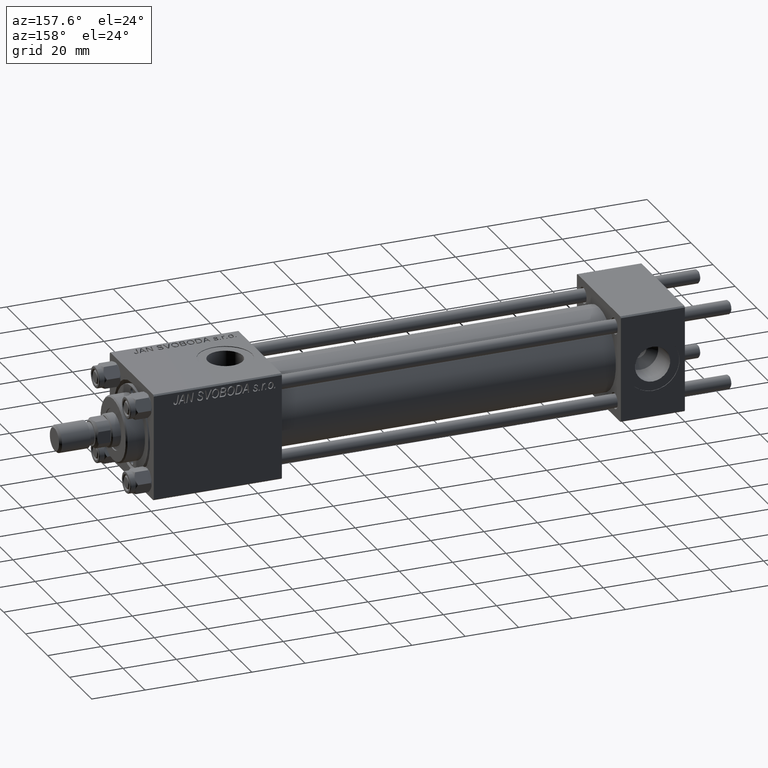
[diagram: clean part render]
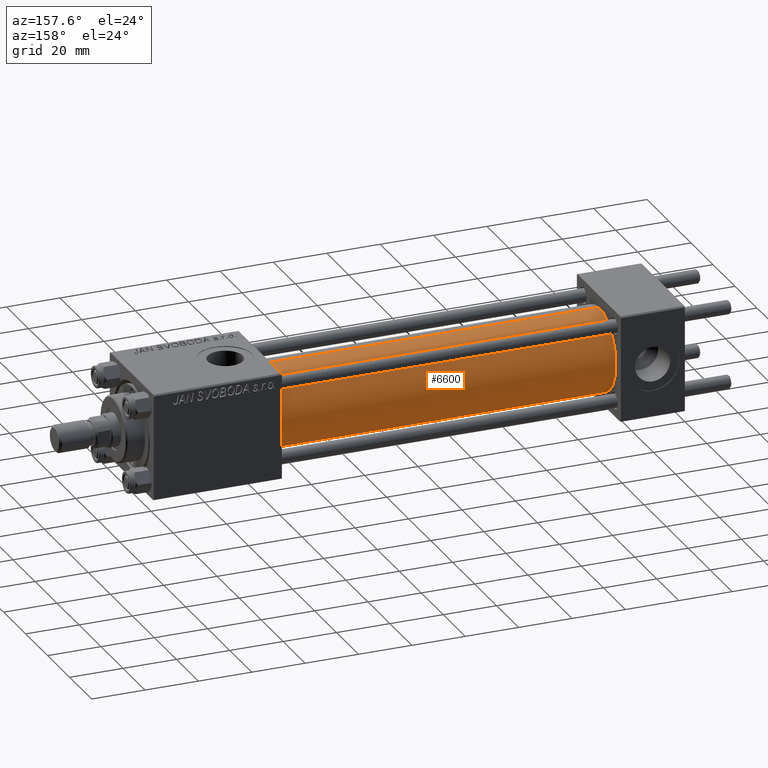
[diagram: same view with one face highlighted and labeled with its STEP entity id]
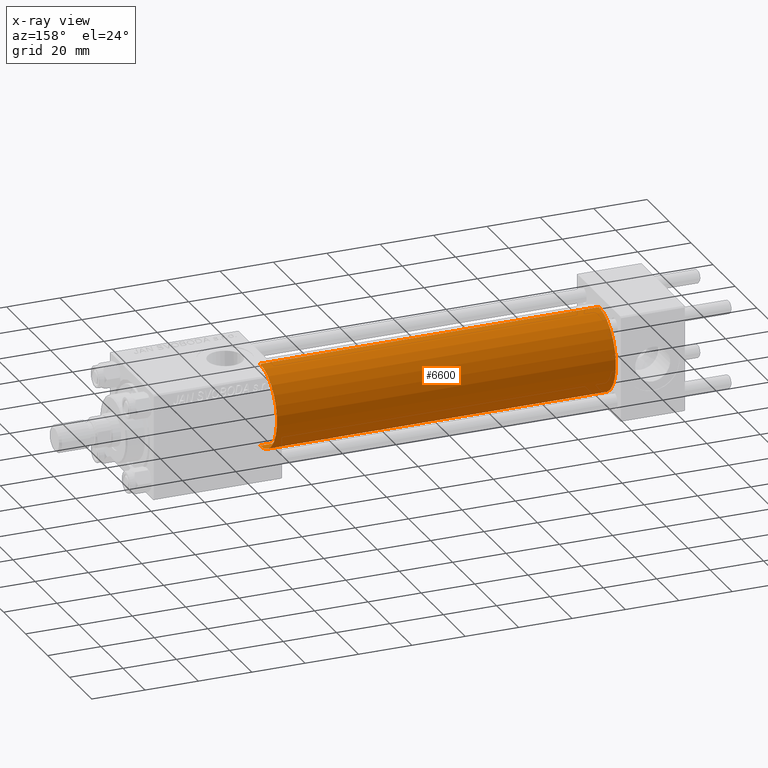
[diagram: x-ray of the same camera — body ghosted, the highlighted face saturated]
A machine part, auxiliary view. The second image highlights one B-rep face of the part: STEP entity #6600.
The next image is the same camera in x-ray: the body ghosted, the highlighted face saturated — about 0% of this face is hidden behind the body in this view.
In plain terms, the highlighted cylindrical surface (partial cylindrical patch) has radius 15.5 mm, axis along (-1, -0, -0).
Its self-contained STEP definition (entity closure, byte-faithful):
#2285 = DIRECTION ( 'NONE',  ( -1.000000000000000000, -0.000000000000000000, -0.000000000000000000 ) ) ;
#2341 = EDGE_LOOP ( 'NONE', ( #33230, #4549, #38000, #37592 ) ) ;
#2691 = DIRECTION ( 'NONE',  ( 0.000000000000000000, 0.000000000000000000, -1.000000000000000000 ) ) ;
#3029 = VERTEX_POINT ( 'NONE', #49905 ) ;
#4317 = CARTESIAN_POINT ( 'NONE',  ( 23.99999999999999289, 0.000000000000000000, 0.000000000000000000 ) ) ;
#4549 = ORIENTED_EDGE ( 'NONE', *, *, #41722, .T. ) ;
#5490 = CIRCLE ( 'NONE', #7122, 15.50000000000000000 ) ;
#6370 = CYLINDRICAL_SURFACE ( 'NONE', #8512, 15.50000000000000000 ) ;
#6600 = ADVANCED_FACE ( 'NONE', ( #44117 ), #6370, .T. ) ;
#7122 = AXIS2_PLACEMENT_3D ( 'NONE', #40935, #33779, #2691 ) ;
#7892 = DIRECTION ( 'NONE',  ( 1.000000000000000000, 0.000000000000000000, 0.000000000000000000 ) ) ;
#8512 = AXIS2_PLACEMENT_3D ( 'NONE', #14017, #2285, #28556 ) ;
#8535 = LINE ( 'NONE', #24331, #38305 ) ;
#10322 = CIRCLE ( 'NONE', #24977, 15.50000000000000000 ) ;
#14017 = CARTESIAN_POINT ( 'NONE',  ( 151.0000000000000000, 0.000000000000000000, 0.000000000000000000 ) ) ;
#16111 = EDGE_CURVE ( 'NONE', #32714, #3029, #10322, .T. ) ;
#17710 = CARTESIAN_POINT ( 'NONE',  ( 23.99999999999999289, 1.898202538678397557E-15, -15.50000000000000000 ) ) ;
#17926 = CARTESIAN_POINT ( 'NONE',  ( 151.0000000000000000, 1.898202538678397557E-15, -15.50000000000000000 ) ) ;
#18304 = EDGE_CURVE ( 'NONE', #38899, #3029, #41725, .T. ) ;
#23627 = CARTESIAN_POINT ( 'NONE',  ( 151.0000000000000000, 0.000000000000000000, 15.50000000000000000 ) ) ;
#24331 = CARTESIAN_POINT ( 'NONE',  ( 151.0000000000000000, 1.898202538678397557E-15, -15.50000000000000000 ) ) ;
#24977 = AXIS2_PLACEMENT_3D ( 'NONE', #4317, #7892, #38989 ) ;
#26662 = DIRECTION ( 'NONE',  ( -1.000000000000000000, -0.000000000000000000, -0.000000000000000000 ) ) ;
#28406 = DIRECTION ( 'NONE',  ( -1.000000000000000000, -0.000000000000000000, -0.000000000000000000 ) ) ;
#28556 = DIRECTION ( 'NONE',  ( 0.000000000000000000, 0.000000000000000000, 1.000000000000000000 ) ) ;
#31302 = EDGE_CURVE ( 'NONE', #46184, #38899, #5490, .T. ) ;
#32366 = VECTOR ( 'NONE', #26662, 1000.000000000000000 ) ;
#32714 = VERTEX_POINT ( 'NONE', #17710 ) ;
#33230 = ORIENTED_EDGE ( 'NONE', *, *, #31302, .F. ) ;
#33779 = DIRECTION ( 'NONE',  ( 1.000000000000000000, 0.000000000000000000, 0.000000000000000000 ) ) ;
#37592 = ORIENTED_EDGE ( 'NONE', *, *, #18304, .F. ) ;
#38000 = ORIENTED_EDGE ( 'NONE', *, *, #16111, .T. ) ;
#38305 = VECTOR ( 'NONE', #28406, 1000.000000000000000 ) ;
#38899 = VERTEX_POINT ( 'NONE', #23627 ) ;
#38989 = DIRECTION ( 'NONE',  ( 0.000000000000000000, 0.000000000000000000, 1.000000000000000000 ) ) ;
#40935 = CARTESIAN_POINT ( 'NONE',  ( 151.0000000000000000, 0.000000000000000000, 0.000000000000000000 ) ) ;
#41722 = EDGE_CURVE ( 'NONE', #46184, #32714, #8535, .T. ) ;
#41725 = LINE ( 'NONE', #41977, #32366 ) ;
#41977 = CARTESIAN_POINT ( 'NONE',  ( 151.0000000000000000, 0.000000000000000000, 15.50000000000000000 ) ) ;
#44117 = FACE_OUTER_BOUND ( 'NONE', #2341, .T. ) ;
#46184 = VERTEX_POINT ( 'NONE', #17926 ) ;
#49905 = CARTESIAN_POINT ( 'NONE',  ( 23.99999999999999289, 0.000000000000000000, 15.50000000000000000 ) ) ;